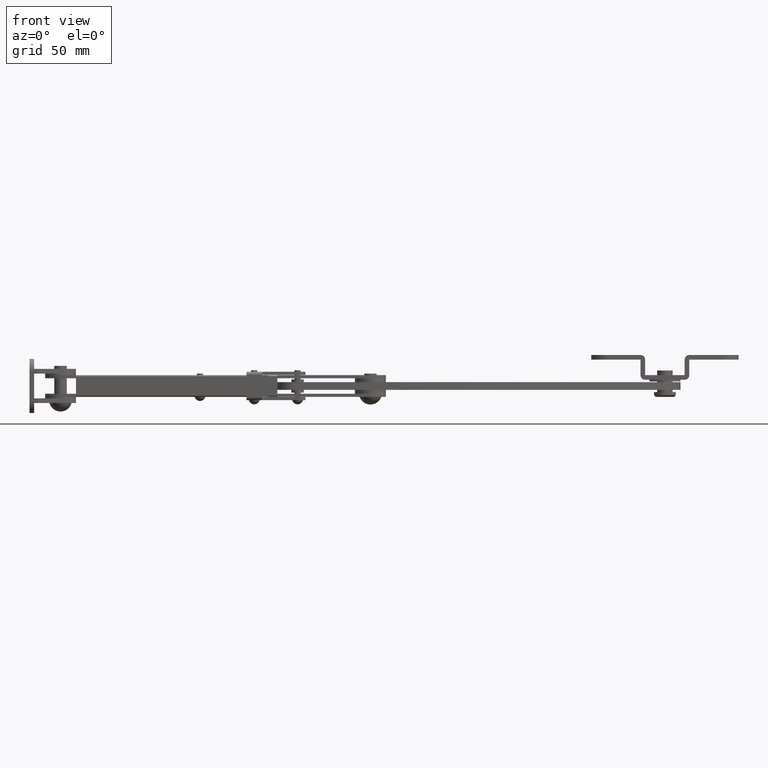
[diagram: clean part render]
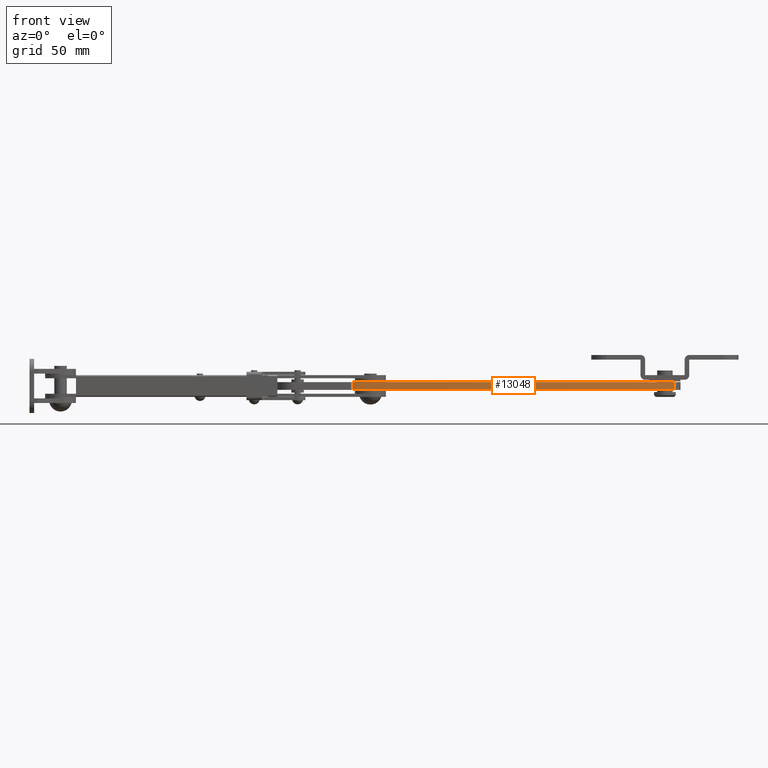
[diagram: same view with one face highlighted and labeled with its STEP entity id]
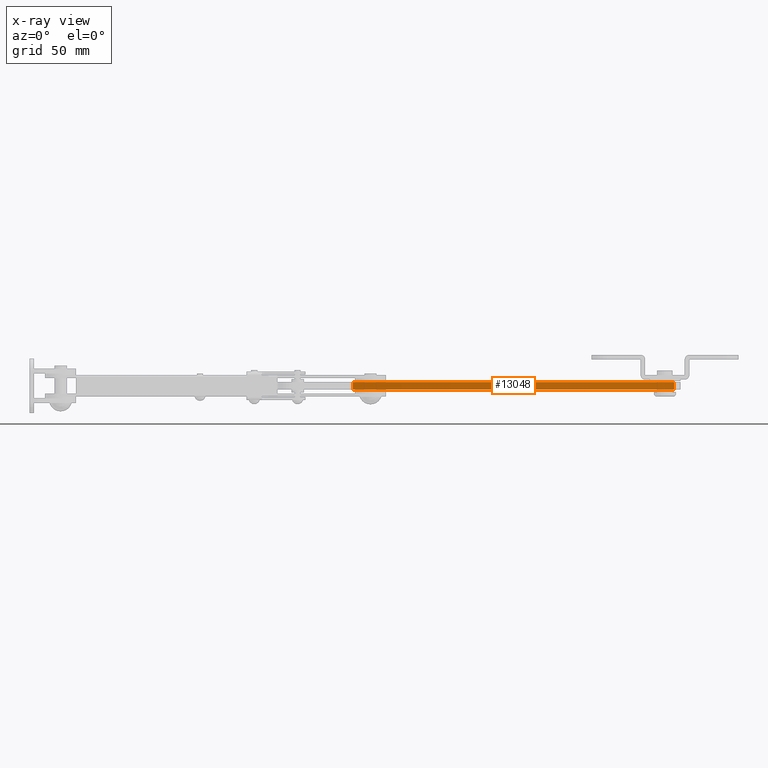
[diagram: x-ray of the same camera — body ghosted, the highlighted face saturated]
A machine part, front view. The second image highlights one B-rep face of the part: STEP entity #13048.
The next image is the same camera in x-ray: the body ghosted, the highlighted face saturated — about 0% of this face is hidden behind the body in this view.
In plain terms, the highlighted cylindrical surface (partial cylindrical patch) has radius 331 mm, axis along (0, 0, -1).
Its self-contained STEP definition (entity closure, byte-faithful):
#941 = CARTESIAN_POINT ( 'NONE',  ( 395.9326708922175200, 54.13148916677473500, 2.499999999999889900 ) ) ;
#1029 = ORIENTED_EDGE ( 'NONE', *, *, #7922, .T. ) ;
#1648 = VECTOR ( 'NONE', #8682, 1000.000000000000000 ) ;
#1660 = FACE_OUTER_BOUND ( 'NONE', #6444, .T. ) ;
#2533 = CARTESIAN_POINT ( 'NONE',  ( 395.9326708922175200, 54.13148916677473500, 2.499999999999889900 ) ) ;
#2556 = LINE ( 'NONE', #3948, #12050 ) ;
#3691 = CARTESIAN_POINT ( 'NONE',  ( 200.1210320001973700, 320.9999999996568900, -2.500000000000000000 ) ) ;
#3948 = CARTESIAN_POINT ( 'NONE',  ( 188.6353280995999700, -9.800662946544330000, 2.499999999999889900 ) ) ;
#4368 = VERTEX_POINT ( 'NONE', #8625 ) ;
#4377 = DIRECTION ( 'NONE',  ( 0.0000000000000000000, 0.0000000000000000000, -1.000000000000000000 ) ) ;
#4994 = DIRECTION ( 'NONE',  ( -1.000000000000000000, 0.0000000000000000000, 0.0000000000000000000 ) ) ;
#6444 = EDGE_LOOP ( 'NONE', ( #11913, #12021, #13017, #1029 ) ) ;
#7083 = VERTEX_POINT ( 'NONE', #2533 ) ;
#7669 = AXIS2_PLACEMENT_3D ( 'NONE', #3691, #12735, #4994 ) ;
#7922 = EDGE_CURVE ( 'NONE', #4368, #16368, #2556, .T. ) ;
#8127 = AXIS2_PLACEMENT_3D ( 'NONE', #12450, #16298, #15013 ) ;
#8504 = LINE ( 'NONE', #941, #1648 ) ;
#8625 = CARTESIAN_POINT ( 'NONE',  ( 188.6353280995999700, -9.800662946544330000, 2.499999999999889900 ) ) ;
#8682 = DIRECTION ( 'NONE',  ( 0.0000000000000000000, 0.0000000000000000000, -1.000000000000000000 ) ) ;
#8733 = CARTESIAN_POINT ( 'NONE',  ( 395.9326708922175200, 54.13148916677473500, -2.500000000000000000 ) ) ;
#8962 = EDGE_CURVE ( 'NONE', #7083, #4368, #12011, .T. ) ;
#10322 = EDGE_CURVE ( 'NONE', #12398, #16368, #15612, .T. ) ;
#11913 = ORIENTED_EDGE ( 'NONE', *, *, #10322, .F. ) ;
#12011 = CIRCLE ( 'NONE', #14978, 330.9999999996057900 ) ;
#12021 = ORIENTED_EDGE ( 'NONE', *, *, #13991, .F. ) ;
#12050 = VECTOR ( 'NONE', #13193, 1000.000000000000000 ) ;
#12114 = CARTESIAN_POINT ( 'NONE',  ( 200.1210320001973700, 320.9999999996568900, 2.499999999999889900 ) ) ;
#12398 = VERTEX_POINT ( 'NONE', #8733 ) ;
#12450 = CARTESIAN_POINT ( 'NONE',  ( 200.1210320001973700, 320.9999999996568900, 2.499999999999889900 ) ) ;
#12735 = DIRECTION ( 'NONE',  ( 0.0000000000000000000, 0.0000000000000000000, -1.000000000000000000 ) ) ;
#13017 = ORIENTED_EDGE ( 'NONE', *, *, #8962, .T. ) ;
#13048 = ADVANCED_FACE ( 'NONE', ( #1660 ), #14151, .T. ) ;
#13193 = DIRECTION ( 'NONE',  ( 0.0000000000000000000, 0.0000000000000000000, -1.000000000000000000 ) ) ;
#13401 = DIRECTION ( 'NONE',  ( -1.000000000000000000, 0.0000000000000000000, 0.0000000000000000000 ) ) ;
#13991 = EDGE_CURVE ( 'NONE', #7083, #12398, #8504, .T. ) ;
#14151 = CYLINDRICAL_SURFACE ( 'NONE', #8127, 330.9999999996057900 ) ;
#14978 = AXIS2_PLACEMENT_3D ( 'NONE', #12114, #4377, #13401 ) ;
#15013 = DIRECTION ( 'NONE',  ( -1.000000000000000000, 0.0000000000000000000, 0.0000000000000000000 ) ) ;
#15612 = CIRCLE ( 'NONE', #7669, 330.9999999996057900 ) ;
#15862 = CARTESIAN_POINT ( 'NONE',  ( 188.6353280995999700, -9.800662946544330000, -2.500000000000000000 ) ) ;
#16298 = DIRECTION ( 'NONE',  ( 0.0000000000000000000, 0.0000000000000000000, -1.000000000000000000 ) ) ;
#16368 = VERTEX_POINT ( 'NONE', #15862 ) ;